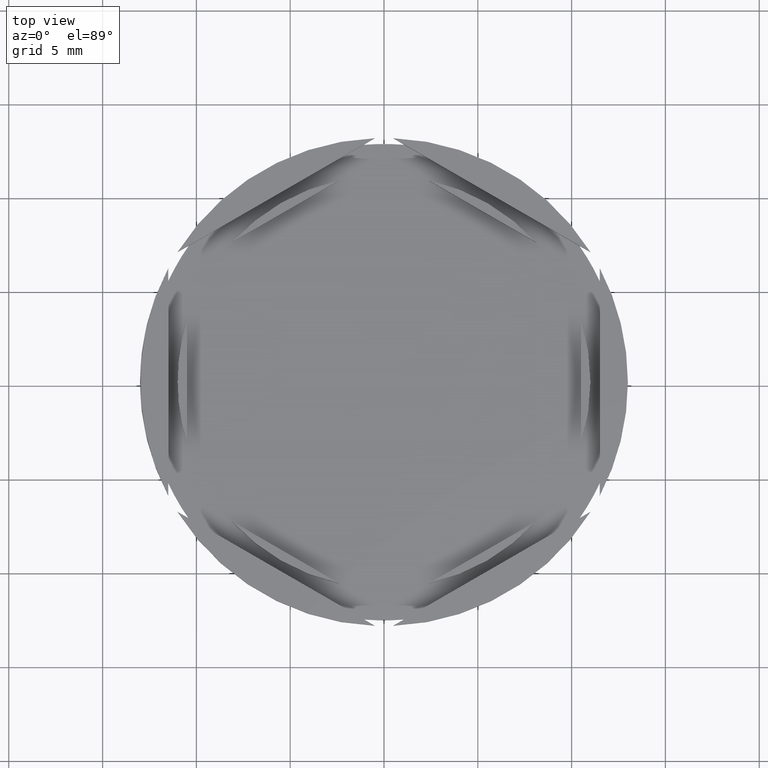
[diagram: clean part render]
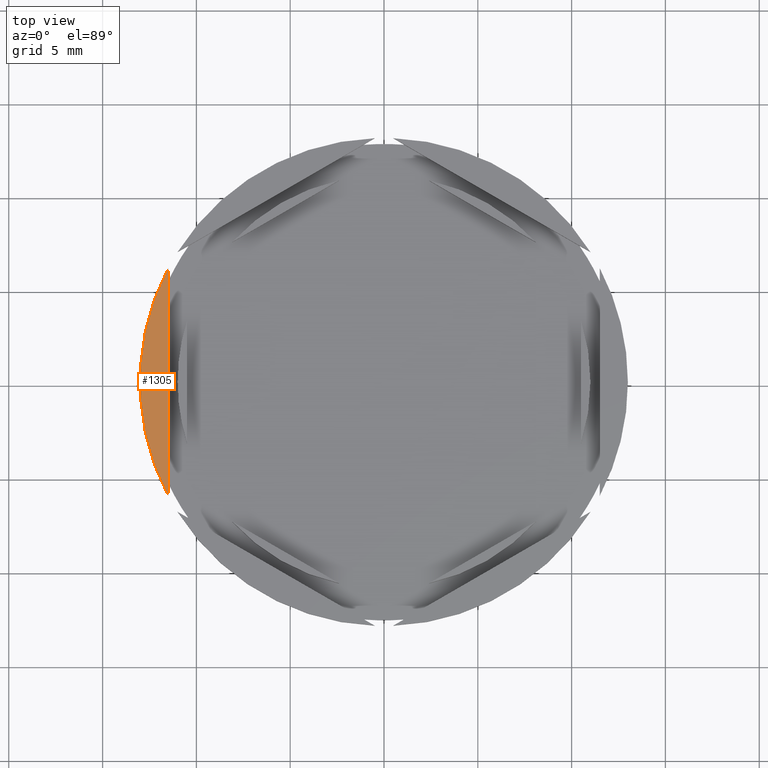
[diagram: same view with one face highlighted and labeled with its STEP entity id]
A machine part, top view. The second image highlights one B-rep face of the part: STEP entity #1305.
In plain terms, the highlighted planar face has unit normal (0, -0, 1).
Its self-contained STEP definition (entity closure, byte-faithful):
#462 = PLANE ( 'NONE',  #741 ) ;
#486 = DIRECTION ( 'NONE',  ( -0.000000000000000000, -0.000000000000000000, 1.000000000000000000 ) ) ;
#505 = DIRECTION ( 'NONE',  ( 1.000000000000000000, 0.000000000000000000, 0.000000000000000000 ) ) ;
#741 = AXIS2_PLACEMENT_3D ( 'NONE', #1356, #812, #1721 ) ;
#812 = DIRECTION ( 'NONE',  ( 0.000000000000000000, -0.000000000000000000, 1.000000000000000000 ) ) ;
#851 = FACE_OUTER_BOUND ( 'NONE', #1909, .T. ) ;
#951 = ORIENTED_EDGE ( 'NONE', *, *, #1812, .T. ) ;
#1216 = CARTESIAN_POINT ( 'NONE',  ( 0.000000000000000000, 0.000000000000000000, 0.000000000000000000 ) ) ;
#1265 = ORIENTED_EDGE ( 'NONE', *, *, #1543, .F. ) ;
#1305 = ADVANCED_FACE ( 'NONE', ( #851 ), #462, .T. ) ;
#1356 = CARTESIAN_POINT ( 'NONE',  ( 0.000000000000000000, 0.000000000000000000, 0.000000000000000000 ) ) ;
#1406 = DIRECTION ( 'NONE',  ( 0.000000000000000000, -1.000000000000000000, 0.000000000000000000 ) ) ;
#1471 = VECTOR ( 'NONE', #1406, 1000.000000000000000 ) ;
#1543 = EDGE_CURVE ( 'NONE', #1666, #1565, #1601, .T. ) ;
#1565 = VERTEX_POINT ( 'NONE', #1584 ) ;
#1584 = CARTESIAN_POINT ( 'NONE',  ( -11.50000000000000000, -6.062177826491065957, 0.000000000000000000 ) ) ;
#1601 = LINE ( 'NONE', #2308, #1471 ) ;
#1666 = VERTEX_POINT ( 'NONE', #1796 ) ;
#1721 = DIRECTION ( 'NONE',  ( 1.000000000000000000, 0.000000000000000000, 0.000000000000000000 ) ) ;
#1796 = CARTESIAN_POINT ( 'NONE',  ( -11.50000000000000000, 6.062177826491065957, 0.000000000000000000 ) ) ;
#1812 = EDGE_CURVE ( 'NONE', #1666, #1565, #1870, .T. ) ;
#1870 = CIRCLE ( 'NONE', #2361, 12.99999999999999822 ) ;
#1909 = EDGE_LOOP ( 'NONE', ( #1265, #951 ) ) ;
#2308 = CARTESIAN_POINT ( 'NONE',  ( -11.50000000000000000, 6.639528095680691244, 0.000000000000000000 ) ) ;
#2361 = AXIS2_PLACEMENT_3D ( 'NONE', #1216, #486, #505 ) ;